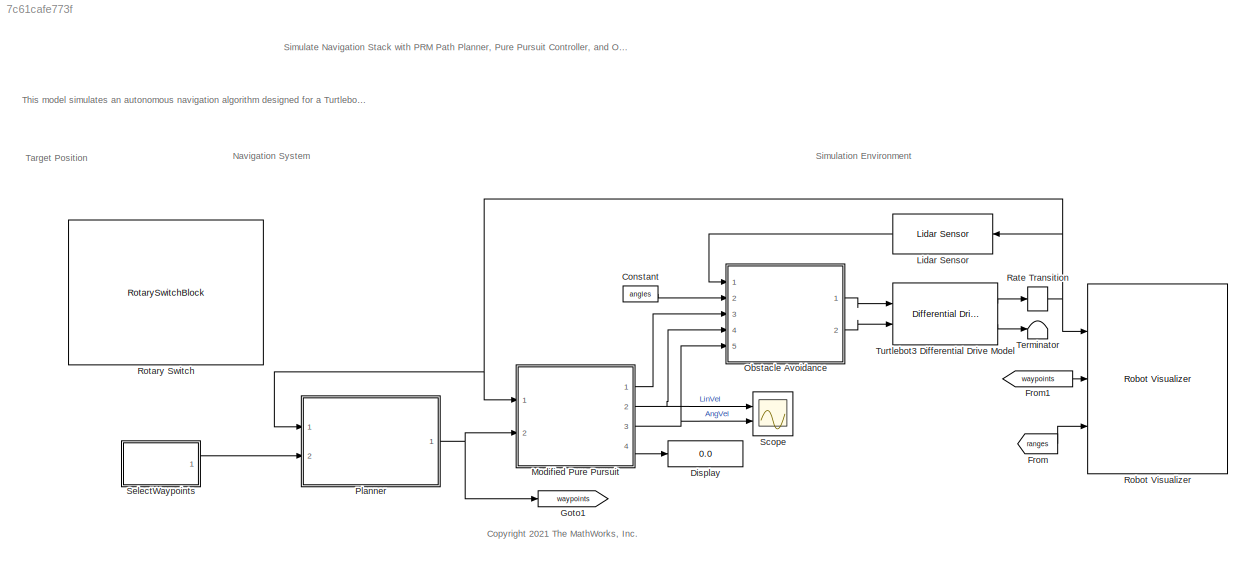
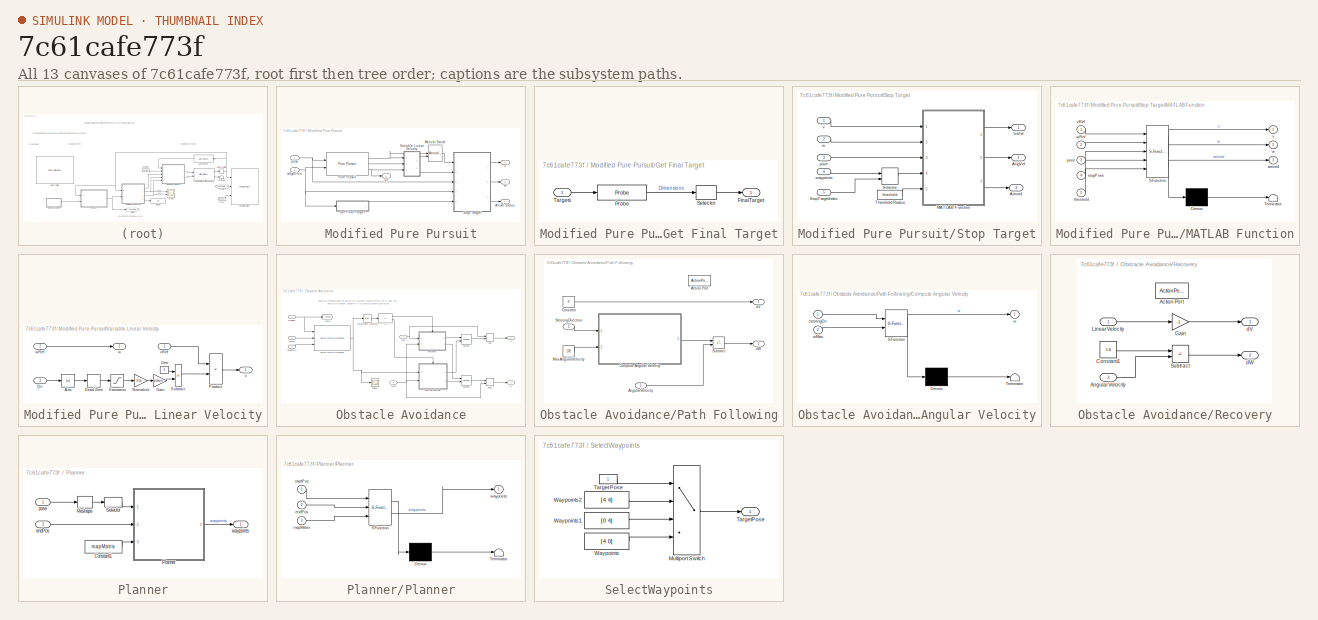
[diagram: thumbnail index - all 13 canvases of the model, root first then tree order]
MODEL slx_7c61cafe773f
KIND model
CONFIG AbsTol = auto
CONFIG EnableMultiTasking = on
CONFIG FixedStep = 0.01
CONFIG MaxStep = auto
CONFIG MinStep = auto
CONFIG PreLoadFcn = load('turtleBotMazeMap.mat')\nangles=0:pi/180:2*pi;\n[mapMatrix,mapResolution, mapOrigin] = convertMapToMatrix(myOccMap);\n
CONFIG RelTol = 1e-3
CONFIG SampleTimeConstraint = Unconstrained
CONFIG SolverName = VariableStepAuto
CONFIG StartTime = 0.0
CONFIG StopTime = inf
BLOCK [Constant] Constant
  Value = angles
BLOCK [Display] Display
  Decimation = 1
  Ports = [1]
BLOCK [From] From
  GotoTag = ranges
  TagVisibility = global
BLOCK [From] From1
  GotoTag = waypoints
  TagVisibility = global
BLOCK [Goto] Goto1
  GotoTag = waypoints
  TagVisibility = global
BLOCK [Reference] Lidar Sensor  REF=mobileRoboticsLib/Environments/Lidar Sensor
  NameLocation = top
  Ports = [1, 1]
  SourceBlock = mobileRoboticsLib/Environments/Lidar Sensor
  SourceProductName = Mobile Robotics Simulation Toolbox
  SourceType = LidarSensor
BLOCK [SubSystem] Modified Pure Pursuit
  Ports = [2, 4]
  RequestExecContextInheritance = off
BLOCK [Outport] Modified Pure Pursuit/Arrival Status
  Port = 4
  VectorParamsAs1DForOutWhenUnconnected = off
BLOCK [Outport] Modified Pure Pursuit/Dir
  VectorParamsAs1DForOutWhenUnconnected = off
BLOCK [SubSystem] Modified Pure Pursuit/Get Final Target
  Ports = [1, 1]
  RequestExecContextInheritance = off
BLOCK [Outport] Modified Pure Pursuit/Get Final Target/FinalTarget
BLOCK [Probe] Modified Pure Pursuit/Get Final Target/Probe
  Ports = [1, 1]
  ProbeComplexSignal = off
  ProbeSampleTime = off
  ProbeSignalDimensions = on
  ProbeWidth = off
BLOCK [Selector] Modified Pure Pursuit/Get Final Target/Selector
  IndexOptions = Index vector (dialog)
  Indices = 1
  InputPortWidth = 2
  OutputSizes = 1
  Ports = [1, 1]
BLOCK [Inport] Modified Pure Pursuit/Get Final Target/Targets
BLOCK [ManualSwitch] Modified Pure Pursuit/Manual Switch
  CurrentSetting = 0
  NameLocation = top
BLOCK [Reference] Modified Pure Pursuit/Pure Pursuit  REF=robotalgslib/Pure Pursuit
  Ports = [2, 3]
  SourceBlock = robotalgslib/Pure Pursuit
  SourceProductBaseCode = NV,RO
  SourceType = nav.slalgs.internal.PurePursuit
BLOCK [SubSystem] Modified Pure Pursuit/Stop Target
  Ports = [5, 3]
  RequestExecContextInheritance = off
BLOCK [Outport] Modified Pure Pursuit/Stop Target/AngVel
  Port = 2
BLOCK [Outport] Modified Pure Pursuit/Stop Target/Arrived
  Port = 3
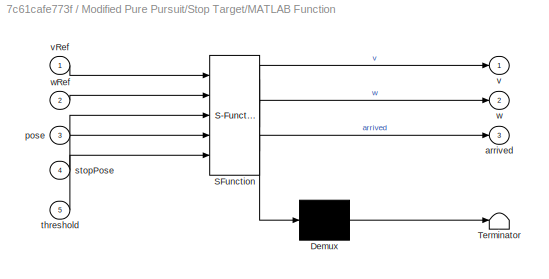
BLOCK [SubSystem] Modified Pure Pursuit/Stop Target/MATLAB Function
  ErrorFcn = Stateflow.Translate.translate
  PermitHierarchicalResolution = ExplicitOnly
  Ports = [5, 3]
  RequestExecContextInheritance = off
  SFBlockType = MATLAB Function
  TreatAsAtomicUnit = on
BLOCK [Demux] Modified Pure Pursuit/Stop Target/MATLAB Function/ Demux 
  Outputs = 1
  Ports = [1, 1]
BLOCK [S-Function] Modified Pure Pursuit/Stop Target/MATLAB Function/ SFunction 
  EnableBusSupport = on
  FunctionName = sf_sfun
  PortCounts = [5 4]
  Ports = [5, 4]
  SFcnIsStateOwnerBlock = off
  SFunctionDeploymentMode = off
  Tag = Stateflow S-Function 2
BLOCK [Terminator] Modified Pure Pursuit/Stop Target/MATLAB Function/ Terminator 
BLOCK [Outport] Modified Pure Pursuit/Stop Target/MATLAB Function/arrived
  Port = 3
BLOCK [Inport] Modified Pure Pursuit/Stop Target/MATLAB Function/pose
  Port = 3
BLOCK [Inport] Modified Pure Pursuit/Stop Target/MATLAB Function/stopPose
  Port = 4
BLOCK [Inport] Modified Pure Pursuit/Stop Target/MATLAB Function/threshold
  Port = 5
BLOCK [Outport] Modified Pure Pursuit/Stop Target/MATLAB Function/v
BLOCK [Inport] Modified Pure Pursuit/Stop Target/MATLAB Function/vRef
BLOCK [Outport] Modified Pure Pursuit/Stop Target/MATLAB Function/w
  Port = 2
BLOCK [Inport] Modified Pure Pursuit/Stop Target/MATLAB Function/wRef
  Port = 2
BLOCK [Selector] Modified Pure Pursuit/Stop Target/Selector
  IndexOptions = Index vector (port),Index vector (dialog)
  Indices = [1 3],[1 2]
  InputPortWidth = 3
  NumberOfDimensions = 2
  OutputSizes = 1,1
  Ports = [2, 1]
BLOCK [Inport] Modified Pure Pursuit/Stop Target/StopTargetIndex
  Port = 5
BLOCK [Constant] Modified Pure Pursuit/Stop Target/Threshold Radius
  Value = threshold
BLOCK [Outport] Modified Pure Pursuit/Stop Target/linVel
BLOCK [Inport] Modified Pure Pursuit/Stop Target/pose
  Port = 3
BLOCK [Inport] Modified Pure Pursuit/Stop Target/v
BLOCK [Inport] Modified Pure Pursuit/Stop Target/w
  Port = 2
BLOCK [Inport] Modified Pure Pursuit/Stop Target/waypoints
  Port = 4
BLOCK [SubSystem] Modified Pure Pursuit/Variable Linear Velocity
  Ports = [3, 2]
  RequestExecContextInheritance = off
BLOCK [Abs] Modified Pure Pursuit/Variable Linear Velocity/Abs
  SaturateOnIntegerOverflow = off
BLOCK [DeadZone] Modified Pure Pursuit/Variable Linear Velocity/Dead Zone
  LowerValue = -deadZone
  UpperValue = deadZone
BLOCK [Inport] Modified Pure Pursuit/Variable Linear Velocity/Dir
  Port = 3
BLOCK [Gain] Modified Pure Pursuit/Variable Linear Velocity/Gain
  Gain = pGain
BLOCK [Gain] Modified Pure Pursuit/Variable Linear Velocity/Normalize
  Gain = 2/pi
BLOCK [Constant] Modified Pure Pursuit/Variable Linear Velocity/One
  OutDataTypeStr = Inherit: Inherit via back propagation
BLOCK [Product] Modified Pure Pursuit/Variable Linear Velocity/Product
  Ports = [2, 1]
BLOCK [Saturate] Modified Pure Pursuit/Variable Linear Velocity/Saturation
  LowerLimit = 0
  UpperLimit = pi/2
BLOCK [Sum] Modified Pure Pursuit/Variable Linear Velocity/Subtract
  IconShape = rectangular
  Inputs = +-
  Ports = [2, 1]
BLOCK [Outport] Modified Pure Pursuit/Variable Linear Velocity/v
BLOCK [Inport] Modified Pure Pursuit/Variable Linear Velocity/vRef
  NameLocation = top
BLOCK [Outport] Modified Pure Pursuit/Variable Linear Velocity/w
  Port = 2
BLOCK [Inport] Modified Pure Pursuit/Variable Linear Velocity/wRef
  Port = 2
BLOCK [Inport] Modified Pure Pursuit/pose
BLOCK [Outport] Modified Pure Pursuit/v
  Port = 2
  VectorParamsAs1DForOutWhenUnconnected = off
BLOCK [Outport] Modified Pure Pursuit/w
  Port = 3
  VectorParamsAs1DForOutWhenUnconnected = off
BLOCK [Inport] Modified Pure Pursuit/waypoints
  Port = 2
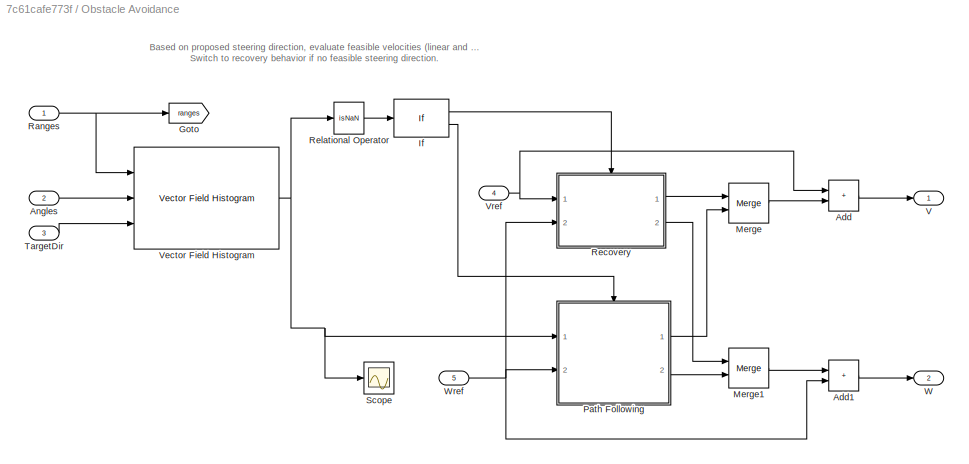
BLOCK [SubSystem] Obstacle Avoidance
  Ports = [5, 2]
  RequestExecContextInheritance = off
BLOCK [Sum] Obstacle Avoidance/Add
  IconShape = rectangular
  Ports = [2, 1]
BLOCK [Sum] Obstacle Avoidance/Add1
  IconShape = rectangular
  Ports = [2, 1]
BLOCK [Inport] Obstacle Avoidance/Angles
  Port = 2
BLOCK [Goto] Obstacle Avoidance/Goto
  GotoTag = ranges
  TagVisibility = global
BLOCK [If] Obstacle Avoidance/If
  IfExpression = u1 == 1
  Ports = [1, 2]
BLOCK [Merge] Obstacle Avoidance/Merge
  Ports = [2, 1]
BLOCK [Merge] Obstacle Avoidance/Merge1
  Ports = [2, 1]
BLOCK [SubSystem] Obstacle Avoidance/Path Following
  Ports = [2, 2, 0, 0, 0, 0, 0, 1]
  RequestExecContextInheritance = off
  TreatAsAtomicUnit = on
BLOCK [ActionPort] Obstacle Avoidance/Path Following/Action Port
  ActionPortLabel = else
BLOCK [Inport] Obstacle Avoidance/Path Following/AngularVelocity
  Port = 2
BLOCK [SubSystem] Obstacle Avoidance/Path Following/Compute Angular Velocity
  ErrorFcn = Stateflow.Translate.translate
  PermitHierarchicalResolution = ExplicitOnly
  Ports = [2, 1]
  RequestExecContextInheritance = off
  SFBlockType = MATLAB Function
  TreatAsAtomicUnit = on
BLOCK [Demux] Obstacle Avoidance/Path Following/Compute Angular Velocity/ Demux 
  Outputs = 1
  Ports = [1, 1]
BLOCK [S-Function] Obstacle Avoidance/Path Following/Compute Angular Velocity/ SFunction 
  EnableBusSupport = on
  FunctionName = sf_sfun
  PortCounts = [2 2]
  Ports = [2, 2]
  SFcnIsStateOwnerBlock = off
  SFunctionDeploymentMode = off
  Tag = Stateflow S-Function 3
BLOCK [Terminator] Obstacle Avoidance/Path Following/Compute Angular Velocity/ Terminator 
BLOCK [Inport] Obstacle Avoidance/Path Following/Compute Angular Velocity/steeringDir
BLOCK [Outport] Obstacle Avoidance/Path Following/Compute Angular Velocity/w
  VectorParamsAs1DForOutWhenUnconnected = off
BLOCK [Inport] Obstacle Avoidance/Path Following/Compute Angular Velocity/wMax
  Port = 2
BLOCK [Constant] Obstacle Avoidance/Path Following/Constant
  Value = 0
BLOCK [Constant] Obstacle Avoidance/Path Following/MaxAngularVelocity
  Value = 1.82
BLOCK [Inport] Obstacle Avoidance/Path Following/SteeringDirection
BLOCK [Sum] Obstacle Avoidance/Path Following/Subtract
  IconShape = rectangular
  Inputs = +-
  Ports = [2, 1]
BLOCK [Outport] Obstacle Avoidance/Path Following/dV
  VectorParamsAs1DForOutWhenUnconnected = off
BLOCK [Outport] Obstacle Avoidance/Path Following/dW
  Port = 2
  VectorParamsAs1DForOutWhenUnconnected = off
BLOCK [Inport] Obstacle Avoidance/Ranges
BLOCK [SubSystem] Obstacle Avoidance/Recovery
  Ports = [2, 2, 0, 0, 0, 0, 0, 1]
  RequestExecContextInheritance = off
  TreatAsAtomicUnit = on
BLOCK [ActionPort] Obstacle Avoidance/Recovery/Action Port
  ActionPortLabel = if(u1 == 1)
BLOCK [Inport] Obstacle Avoidance/Recovery/AngularVelocity
  Port = 2
BLOCK [Constant] Obstacle Avoidance/Recovery/Constant1
  Value = 1.8
BLOCK [Gain] Obstacle Avoidance/Recovery/Gain
  Gain = -1
BLOCK [Inport] Obstacle Avoidance/Recovery/LinearVelocity
BLOCK [Sum] Obstacle Avoidance/Recovery/Subtract
  IconShape = rectangular
  Inputs = +-
  Ports = [2, 1]
BLOCK [Outport] Obstacle Avoidance/Recovery/dV
  VectorParamsAs1DForOutWhenUnconnected = off
BLOCK [Outport] Obstacle Avoidance/Recovery/dW
  Port = 2
  VectorParamsAs1DForOutWhenUnconnected = off
BLOCK [RelationalOperator] Obstacle Avoidance/Relational Operator
  InputSameDT = off
  Operator = isNaN
  OutDataTypeStr = boolean
  Ports = [1, 1]
  RndMeth = Simplest
BLOCK [Scope] Obstacle Avoidance/Scope
  Floating = off
  NumInputPorts = 1
  Ports = [1]
  ScopeSpecificationString = Simulink.scopes.TimeScopeBlockCfg('CurrentConfiguration', extmgr.ConfigurationSet(extmgr.Configuration('Core','General UI',true),extmgr.Configuration('Core','Source UI',true),extmgr.Configuration('Sources','WiredSimulink',true,'DataLoggingLimitDataPoints',true,'DataLoggingSaveFormat','Array','DataLoggingDecimation','1','DataLoggingVariableName','ScopeData1'),extmgr.Configuration('Visuals','Time Do...<+1678ch>
BLOCK [Inport] Obstacle Avoidance/TargetDir
  Port = 3
BLOCK [Outport] Obstacle Avoidance/V
  VectorParamsAs1DForOutWhenUnconnected = off
BLOCK [Reference] Obstacle Avoidance/Vector Field Histogram  REF=robotalgslib/Vector Field Histogram
  Ports = [3, 1]
  SourceBlock = robotalgslib/Vector Field Histogram
  SourceProductBaseCode = NV,RO
  SourceType = nav.slalgs.internal.VectorFieldHistogram
BLOCK [Inport] Obstacle Avoidance/Vref
  Port = 4
BLOCK [Outport] Obstacle Avoidance/W
  Port = 2
  VectorParamsAs1DForOutWhenUnconnected = off
BLOCK [Inport] Obstacle Avoidance/Wref
  Port = 5
BLOCK [SubSystem] Planner
  Ports = [2, 1]
  RequestExecContextInheritance = off
BLOCK [Constant] Planner/Constant1
  Value = mapMatrix
BLOCK [SubSystem] Planner/Planner
  ErrorFcn = Stateflow.Translate.translate
  PermitHierarchicalResolution = ExplicitOnly
  Ports = [3, 1]
  RequestExecContextInheritance = off
  SFBlockType = MATLAB Function
  TreatAsAtomicUnit = on
BLOCK [Demux] Planner/Planner/ Demux 
  Outputs = 1
  Ports = [1, 1]
BLOCK [S-Function] Planner/Planner/ SFunction 
  EnableBusSupport = on
  FunctionName = sf_sfun
  Parameters = inflateRadius,mapOrigin,mapResolution
  PortCounts = [3 2]
  Ports = [3, 2]
  SFcnIsStateOwnerBlock = off
  SFunctionDeploymentMode = off
  Tag = Stateflow S-Function 1
BLOCK [Terminator] Planner/Planner/ Terminator 
BLOCK [Inport] Planner/Planner/endPos
  Port = 2
BLOCK [Inport] Planner/Planner/mapMatrix
  Port = 3
BLOCK [Inport] Planner/Planner/startPos
BLOCK [Outport] Planner/Planner/waypoints
  VectorParamsAs1DForOutWhenUnconnected = off
BLOCK [Reshape] Planner/Reshape
  OutputDimensionality = Row vector (2-D)
  Ports = [1, 1]
BLOCK [Selector] Planner/Selector
  IndexOptions = Index vector (dialog)
  Indices = [1 2]
  InputPortWidth = 3
  OutputSizes = 1
  Ports = [1, 1]
BLOCK [Inport] Planner/endPos
  NameLocation = top
  Port = 2
BLOCK [Inport] Planner/pose
  NameLocation = top
BLOCK [Outport] Planner/waypoints
BLOCK [RateTransition] Rate Transition
  OutPortSampleTime = 0.02
BLOCK [Reference] Robot Visualizer  REF=mobileRoboticsLib/Environments/Robot Visualizer
  Ports = [3]
  Priority = 99
  SourceBlock = mobileRoboticsLib/Environments/Robot Visualizer
  SourceProductName = Mobile Robotics Simulation Toolbox
  SourceType = Visualizer2D
BLOCK [RotarySwitchBlock] Rotary Switch
  LabelPosition = Hide
BLOCK [Scope] Scope
  Floating = off
  NumInputPorts = 2
  Ports = [2]
  ScopeSpecificationString = Simulink.scopes.TimeScopeBlockCfg('CurrentConfiguration', extmgr.ConfigurationSet(extmgr.Configuration('Core','General UI',true),extmgr.Configuration('Core','Source UI',true),extmgr.Configuration('Sources','WiredSimulink',true),extmgr.Configuration('Visuals','Time Domain',true,'SerializedDisplays',{struct('MinYLimReal','0.02201','MaxYLimReal','0.28644','YLabelReal','','MinYLimMag','0.02201','MaxYL...<+2032ch>
BLOCK [SubSystem] SelectWaypoints
  Ports = [0, 1]
  RequestExecContextInheritance = off
BLOCK [MultiPortSwitch] SelectWaypoints/Multiport Switch
  InputSameDT = off
  Ports = [4, 1]
  SaturateOnIntegerOverflow = off
BLOCK [Constant] SelectWaypoints/Target Pose
  NameLocation = top
BLOCK [Outport] SelectWaypoints/TargetPose
BLOCK [Constant] SelectWaypoints/Waypoints
  Value = [4 0]
BLOCK [Constant] SelectWaypoints/Waypoints1
  Value = [0 4]
BLOCK [Constant] SelectWaypoints/Waypoints2
  Value = [4 4]
BLOCK [Terminator] Terminator
BLOCK [Reference] Turtlebot3 Differential Drive Model  REF=robotmobilelib/Differential Drive Kinematic Model
  Ports = [2, 2]
  SourceBlock = robotmobilelib/Differential Drive Kinematic Model
  SourceProductBaseCode = RO
  SourceType = Differential Drive Kinematic Model
ANNOTATION (root): Simulate Navigation Stack with PRM Path Planner, Pure Pursuit Controller, and Obstacle Avoidance
ANNOTATION (root): <copyright redacted>
ANNOTATION (root): This model simulates an autonomous navigation algorithm designed for a Turtlebot3 robot. The algorithm integrates a PRM planner to derive navigation waypoins between two locations and a VFH obstacle avoidance algorithm coupled to a modified pure pursuit path following controller.
ANNOTATION (root): Navigation System
ANNOTATION (root): Simulation Environment
ANNOTATION (root): Target Position
ANNOTATION Obstacle Avoidance: Based on proposed steering direction, evaluate feasible velocities (linear and angular). Switch to recovery behavior if no feasible steering direction.
LINE Constant:1 -> Obstacle Avoidance:2
LINE From1:1 -> Robot Visualizer:2
LINE From:1 -> Robot Visualizer:3
LINE Lidar Sensor:1 -> Obstacle Avoidance:1
LINE Modified Pure Pursuit/Get Final Target/Probe:1 -> Modified Pure Pursuit/Get Final Target/Selector:1
LINE Modified Pure Pursuit/Get Final Target/Selector:1 -> Modified Pure Pursuit/Get Final Target/FinalTarget:1
LINE Modified Pure Pursuit/Get Final Target/Targets:1 -> Modified Pure Pursuit/Get Final Target/Probe:1
LINE Modified Pure Pursuit/Get Final Target:1 -> Modified Pure Pursuit/Stop Target:5
LINE Modified Pure Pursuit/Manual Switch:1 -> Modified Pure Pursuit/Stop Target:1
NET Modified Pure Pursuit/Pure Pursuit:1 -> Modified Pure Pursuit/Manual Switch:1, Modified Pure Pursuit/Variable Linear Velocity:1
LINE Modified Pure Pursuit/Pure Pursuit:2 -> Modified Pure Pursuit/Variable Linear Velocity:2
NET Modified Pure Pursuit/Pure Pursuit:3 -> Modified Pure Pursuit/Dir:1, Modified Pure Pursuit/Variable Linear Velocity:3
LINE Modified Pure Pursuit/Stop Target/MATLAB Function:1 -> Modified Pure Pursuit/Stop Target/linVel:1
LINE Modified Pure Pursuit/Stop Target/MATLAB Function:2 -> Modified Pure Pursuit/Stop Target/AngVel:1
LINE Modified Pure Pursuit/Stop Target/MATLAB Function:3 -> Modified Pure Pursuit/Stop Target/Arrived:1
LINE Modified Pure Pursuit/Stop Target/Selector:1 -> Modified Pure Pursuit/Stop Target/MATLAB Function:4
LINE Modified Pure Pursuit/Stop Target/StopTargetIndex:1 -> Modified Pure Pursuit/Stop Target/Selector:2
LINE Modified Pure Pursuit/Stop Target/Threshold Radius:1 -> Modified Pure Pursuit/Stop Target/MATLAB Function:5
LINE Modified Pure Pursuit/Stop Target/pose:1 -> Modified Pure Pursuit/Stop Target/MATLAB Function:3
LINE Modified Pure Pursuit/Stop Target/v:1 -> Modified Pure Pursuit/Stop Target/MATLAB Function:1
LINE Modified Pure Pursuit/Stop Target/w:1 -> Modified Pure Pursuit/Stop Target/MATLAB Function:2
LINE Modified Pure Pursuit/Stop Target/waypoints:1 -> Modified Pure Pursuit/Stop Target/Selector:1
LINE Modified Pure Pursuit/Stop Target:1 -> Modified Pure Pursuit/v:1
LINE Modified Pure Pursuit/Stop Target:2 -> Modified Pure Pursuit/w:1
LINE Modified Pure Pursuit/Stop Target:3 -> Modified Pure Pursuit/Arrival Status:1
LINE Modified Pure Pursuit/Variable Linear Velocity/Abs:1 -> Modified Pure Pursuit/Variable Linear Velocity/Dead Zone:1
LINE Modified Pure Pursuit/Variable Linear Velocity/Dead Zone:1 -> Modified Pure Pursuit/Variable Linear Velocity/Saturation:1
LINE Modified Pure Pursuit/Variable Linear Velocity/Dir:1 -> Modified Pure Pursuit/Variable Linear Velocity/Abs:1
LINE Modified Pure Pursuit/Variable Linear Velocity/Gain:1 -> Modified Pure Pursuit/Variable Linear Velocity/Subtract:2
LINE Modified Pure Pursuit/Variable Linear Velocity/Normalize:1 -> Modified Pure Pursuit/Variable Linear Velocity/Gain:1
LINE Modified Pure Pursuit/Variable Linear Velocity/One:1 -> Modified Pure Pursuit/Variable Linear Velocity/Subtract:1
LINE Modified Pure Pursuit/Variable Linear Velocity/Product:1 -> Modified Pure Pursuit/Variable Linear Velocity/v:1
LINE Modified Pure Pursuit/Variable Linear Velocity/Saturation:1 -> Modified Pure Pursuit/Variable Linear Velocity/Normalize:1
LINE Modified Pure Pursuit/Variable Linear Velocity/Subtract:1 -> Modified Pure Pursuit/Variable Linear Velocity/Product:2
LINE Modified Pure Pursuit/Variable Linear Velocity/vRef:1 -> Modified Pure Pursuit/Variable Linear Velocity/Product:1
LINE Modified Pure Pursuit/Variable Linear Velocity/wRef:1 -> Modified Pure Pursuit/Variable Linear Velocity/w:1
LINE Modified Pure Pursuit/Variable Linear Velocity:1 -> Modified Pure Pursuit/Manual Switch:2
LINE Modified Pure Pursuit/Variable Linear Velocity:2 -> Modified Pure Pursuit/Stop Target:2
NET Modified Pure Pursuit/pose:1 -> Modified Pure Pursuit/Pure Pursuit:1, Modified Pure Pursuit/Stop Target:3
NET Modified Pure Pursuit/waypoints:1 -> Modified Pure Pursuit/Get Final Target:1, Modified Pure Pursuit/Pure Pursuit:2, Modified Pure Pursuit/Stop Target:4
LINE Modified Pure Pursuit:1 -> Obstacle Avoidance:3
NET Modified Pure Pursuit:2 -> Obstacle Avoidance:4, Scope:1
NET Modified Pure Pursuit:3 -> Obstacle Avoidance:5, Scope:2
LINE Modified Pure Pursuit:4 -> Display:1
LINE Obstacle Avoidance/Add1:1 -> Obstacle Avoidance/W:1
LINE Obstacle Avoidance/Add:1 -> Obstacle Avoidance/V:1
LINE Obstacle Avoidance/Angles:1 -> Obstacle Avoidance/Vector Field Histogram:2
LINE Obstacle Avoidance/If:1 -> Obstacle Avoidance/Recovery:ifaction
LINE Obstacle Avoidance/If:2 -> Obstacle Avoidance/Path Following:ifaction
LINE Obstacle Avoidance/Merge1:1 -> Obstacle Avoidance/Add1:1
LINE Obstacle Avoidance/Merge:1 -> Obstacle Avoidance/Add:2
LINE Obstacle Avoidance/Path Following/AngularVelocity:1 -> Obstacle Avoidance/Path Following/Subtract:2
LINE Obstacle Avoidance/Path Following/Compute Angular Velocity:1 -> Obstacle Avoidance/Path Following/Subtract:1
LINE Obstacle Avoidance/Path Following/Constant:1 -> Obstacle Avoidance/Path Following/dV:1
LINE Obstacle Avoidance/Path Following/MaxAngularVelocity:1 -> Obstacle Avoidance/Path Following/Compute Angular Velocity:2
LINE Obstacle Avoidance/Path Following/SteeringDirection:1 -> Obstacle Avoidance/Path Following/Compute Angular Velocity:1
LINE Obstacle Avoidance/Path Following/Subtract:1 -> Obstacle Avoidance/Path Following/dW:1
LINE Obstacle Avoidance/Path Following:1 -> Obstacle Avoidance/Merge:2
LINE Obstacle Avoidance/Path Following:2 -> Obstacle Avoidance/Merge1:2
NET Obstacle Avoidance/Ranges:1 -> Obstacle Avoidance/Goto:1, Obstacle Avoidance/Vector Field Histogram:1
LINE Obstacle Avoidance/Recovery/AngularVelocity:1 -> Obstacle Avoidance/Recovery/Subtract:2
LINE Obstacle Avoidance/Recovery/Constant1:1 -> Obstacle Avoidance/Recovery/Subtract:1
LINE Obstacle Avoidance/Recovery/Gain:1 -> Obstacle Avoidance/Recovery/dV:1
LINE Obstacle Avoidance/Recovery/LinearVelocity:1 -> Obstacle Avoidance/Recovery/Gain:1
LINE Obstacle Avoidance/Recovery/Subtract:1 -> Obstacle Avoidance/Recovery/dW:1
LINE Obstacle Avoidance/Recovery:1 -> Obstacle Avoidance/Merge:1
LINE Obstacle Avoidance/Recovery:2 -> Obstacle Avoidance/Merge1:1
LINE Obstacle Avoidance/Relational Operator:1 -> Obstacle Avoidance/If:1
LINE Obstacle Avoidance/TargetDir:1 -> Obstacle Avoidance/Vector Field Histogram:3
NET Obstacle Avoidance/Vector Field Histogram:1 -> Obstacle Avoidance/Path Following:1, Obstacle Avoidance/Relational Operator:1, Obstacle Avoidance/Scope:1
NET Obstacle Avoidance/Vref:1 -> Obstacle Avoidance/Add:1, Obstacle Avoidance/Recovery:1
NET Obstacle Avoidance/Wref:1 -> Obstacle Avoidance/Add1:2, Obstacle Avoidance/Path Following:2, Obstacle Avoidance/Recovery:2
LINE Obstacle Avoidance:1 -> Turtlebot3 Differential Drive Model:1
LINE Obstacle Avoidance:2 -> Turtlebot3 Differential Drive Model:2
LINE Planner/Constant1:1 -> Planner/Planner:3
LINE Planner/Planner:1 -> Planner/waypoints:1
LINE Planner/Reshape:1 -> Planner/Selector:1
LINE Planner/Selector:1 -> Planner/Planner:1
LINE Planner/endPos:1 -> Planner/Planner:2
LINE Planner/pose:1 -> Planner/Reshape:1
NET Planner:1 -> Goto1:1, Modified Pure Pursuit:2
NET Rate Transition:1 -> Lidar Sensor:1, Modified Pure Pursuit:1, Planner:1, Robot Visualizer:1
LINE SelectWaypoints/Multiport Switch:1 -> SelectWaypoints/TargetPose:1
LINE SelectWaypoints/Target Pose:1 -> SelectWaypoints/Multiport Switch:1
LINE SelectWaypoints/Waypoints1:1 -> SelectWaypoints/Multiport Switch:3
LINE SelectWaypoints/Waypoints2:1 -> SelectWaypoints/Multiport Switch:2
LINE SelectWaypoints/Waypoints:1 -> SelectWaypoints/Multiport Switch:4
LINE SelectWaypoints:1 -> Planner:2
LINE Turtlebot3 Differential Drive Model:1 -> Rate Transition:1
LINE Turtlebot3 Differential Drive Model:2 -> Terminator:1
note: NET lines group one-source signal fan-out (src -> all destinations, sorted); 1:1 wires keep LINE
CHART Planner/Planner states=1 transitions=1
  STATE_LABEL 'eML_blk_kernel()'
  STATE_LABEL 'SCRIPT:\nfunction waypoints = PRM_codegen(startPos, endPos, mapMatrix, mapResolution, mapOrigin, inflateRadius)\n\npersistent waypointsInternal\npersistent prevStartPos\npersistent prevEndPos\n\n% Set constant parameters\nmaxNumNodes = 50;\n\n% Initialize persistent variables that are used downstream\nif isempty(prevStartPos)\n    prevStartPos = startPos;\nend\n\nif isempty(prevEndPos)\n    prevEndPos = endPos;\ne...<+1281ch>'
CHART Modified Pure Pursuit/Stop Target/MATLAB Function states=1 transitions=1
  STATE_LABEL 'eML_blk_kernel()'
  STATE_LABEL 'SCRIPT:\nfunction [v, w, arrived] = arrivalThreshold(vRef, wRef, pose, stopPose, threshold)\n\neucDist = sqrt((stopPose(1)-pose(1))^2 + (stopPose(2)-pose(2))^2);\n\nif eucDist > threshold\n    v = vRef;\n    w = wRef;\n    arrived = 0;\nelse\n    v = 0;\n    w = 0;\n    arrived = 1;\nend'
CHART Obstacle Avoidance/Path Following/Compute Angular Velocity states=1 transitions=1
  STATE_LABEL 'eML_blk_kernel()'
  STATE_LABEL "SCRIPT:\nfunction w = exampleHelperComputeAngularVelocity(steeringDir, wMax)\n%EXAMPLEHELPERCOMPUTEANGULARVELOCITY Compute angular velocity\n%   W = exampleHelperComputeAngularVelocity(STEERINGDIR)\n%   returns the angular velocity W for a differential drive robot in radians\n%   per second for a given steering direction STEERINGDIR in the robot's\n%   coordinate frame in radians.\n%\n%   W = exampleHelpe...<+1444ch>"
CHART  states=0 transitions=0
CHART  states=0 transitions=0
CHART  states=0 transitions=0
